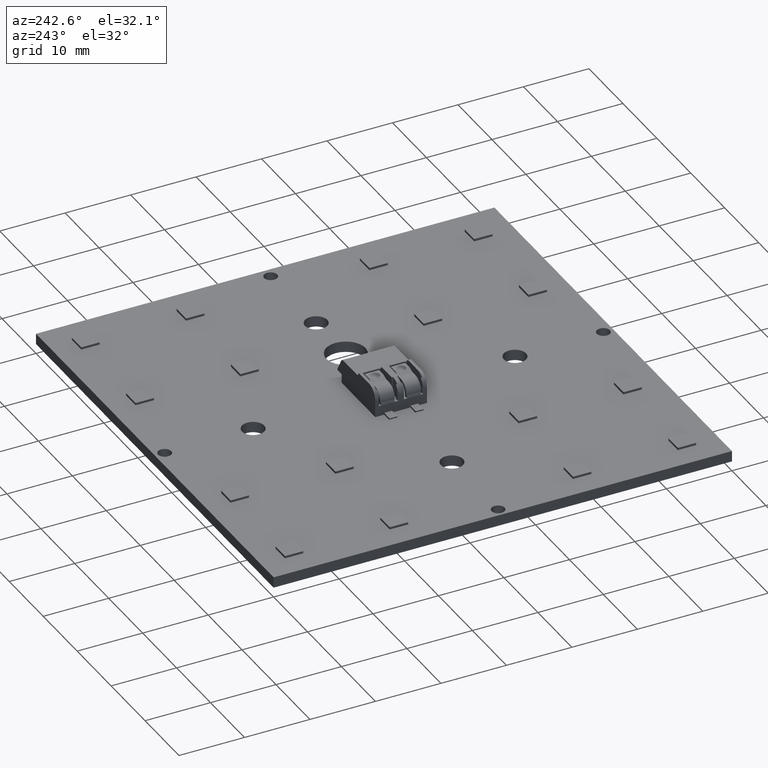
[diagram: clean part render]
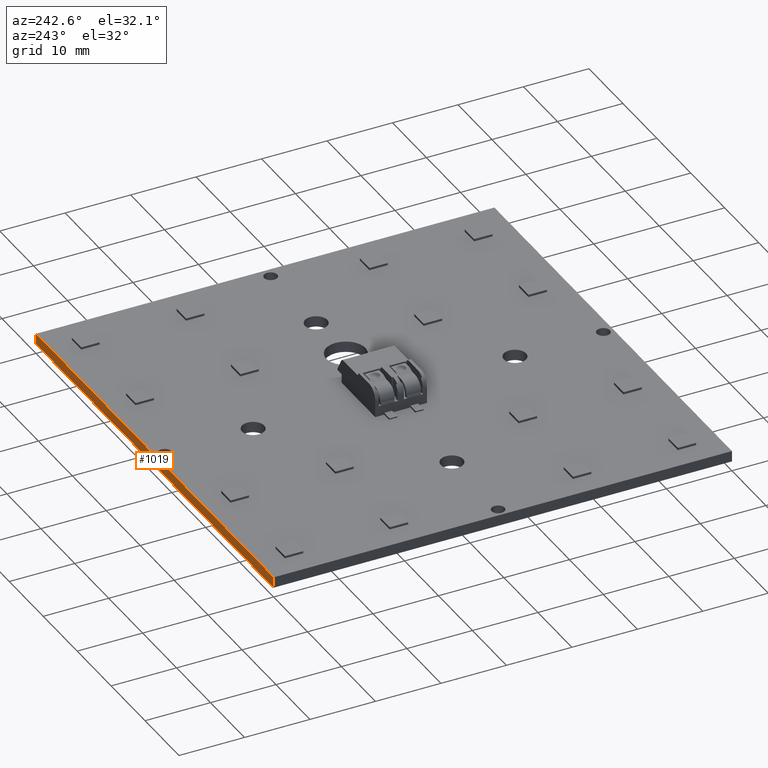
[diagram: same view with one face highlighted and labeled with its STEP entity id]
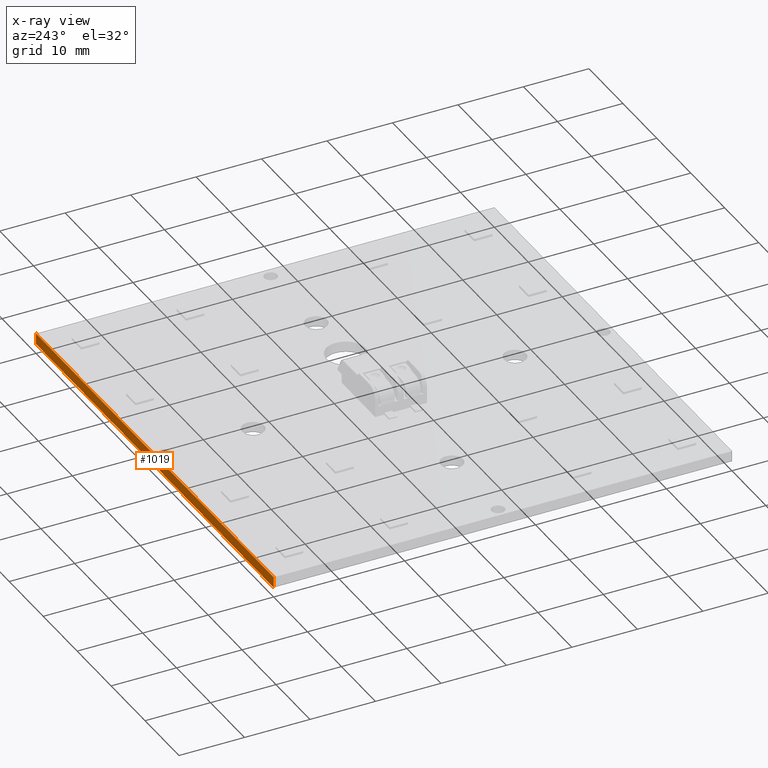
[diagram: x-ray of the same camera — body ghosted, the highlighted face saturated]
A machine part, auxiliary view. The second image highlights one B-rep face of the part: STEP entity #1019.
The next image is the same camera in x-ray: the body ghosted, the highlighted face saturated — about 0% of this face is hidden behind the body in this view.
In plain terms, the highlighted planar face has unit normal (0, 1, 0).
Its self-contained STEP definition (entity closure, byte-faithful):
#1019=ADVANCED_FACE('',(#1314),#1199,.T.);
#1199=PLANE('',#4210);
#1314=FACE_OUTER_BOUND('',#1481,.T.);
#1481=EDGE_LOOP('',(#1693,#1694,#1695,#1696));
#1693=ORIENTED_EDGE('',*,*,#3015,.F.);
#1694=ORIENTED_EDGE('',*,*,#3014,.F.);
#1695=ORIENTED_EDGE('',*,*,#3016,.T.);
#1696=ORIENTED_EDGE('',*,*,#3017,.T.);
#2680=VERTEX_POINT('',#5513);
#2682=VERTEX_POINT('',#5517);
#2683=VERTEX_POINT('',#5521);
#2684=VERTEX_POINT('',#5523);
#3014=EDGE_CURVE('',#2682,#2680,#3509,.T.);
#3015=EDGE_CURVE('',#2680,#2683,#3510,.T.);
#3016=EDGE_CURVE('',#2682,#2684,#3511,.T.);
#3017=EDGE_CURVE('',#2684,#2683,#3512,.T.);
#3509=LINE('',#5518,#3860);
#3510=LINE('',#5520,#3861);
#3511=LINE('',#5522,#3862);
#3512=LINE('',#5524,#3863);
#3860=VECTOR('',#4530,1.);
#3861=VECTOR('',#4533,1.);
#3862=VECTOR('',#4534,1.);
#3863=VECTOR('',#4535,1.);
#4210=AXIS2_PLACEMENT_3D('',#5525,#4536,#4537);
#4530=DIRECTION('',(0.,0.,1.));
#4533=DIRECTION('',(-1.,0.,0.));
#4534=DIRECTION('',(-1.,0.,0.));
#4535=DIRECTION('',(0.,0.,1.));
#4536=DIRECTION('',(0.,1.,0.));
#4537=DIRECTION('',(0.,0.,1.));
#5513=CARTESIAN_POINT('',(70.,70.,0.));
#5517=CARTESIAN_POINT('',(70.,70.,-1.65));
#5518=CARTESIAN_POINT('',(70.,70.,-1.65));
#5520=CARTESIAN_POINT('',(70.,70.,0.));
#5521=CARTESIAN_POINT('',(0.,70.,0.));
#5522=CARTESIAN_POINT('',(70.,70.,-1.65));
#5523=CARTESIAN_POINT('',(0.,70.,-1.65));
#5524=CARTESIAN_POINT('',(0.,70.,-1.65));
#5525=CARTESIAN_POINT('',(70.,70.,-1.65));